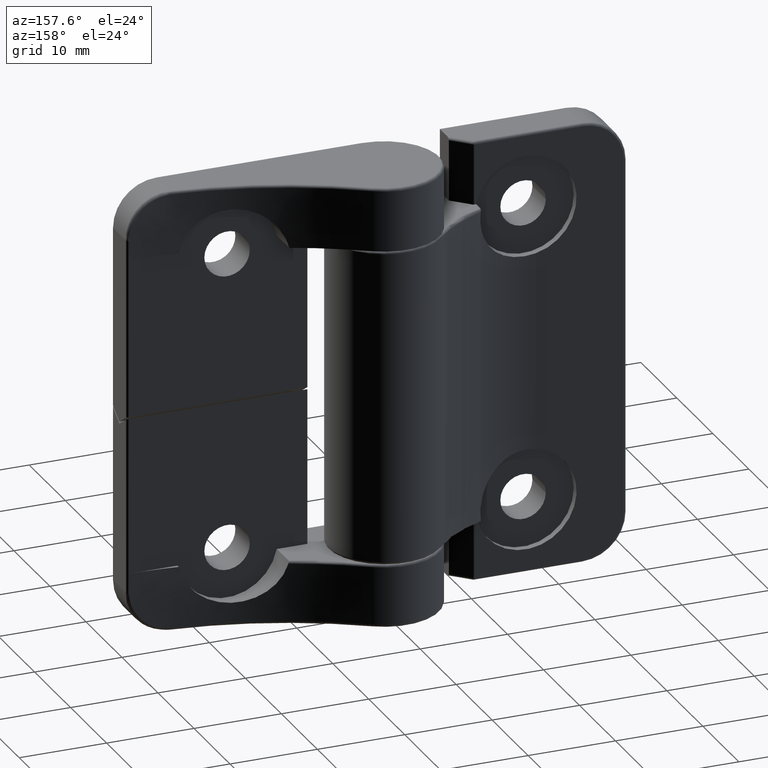
[diagram: clean part render]
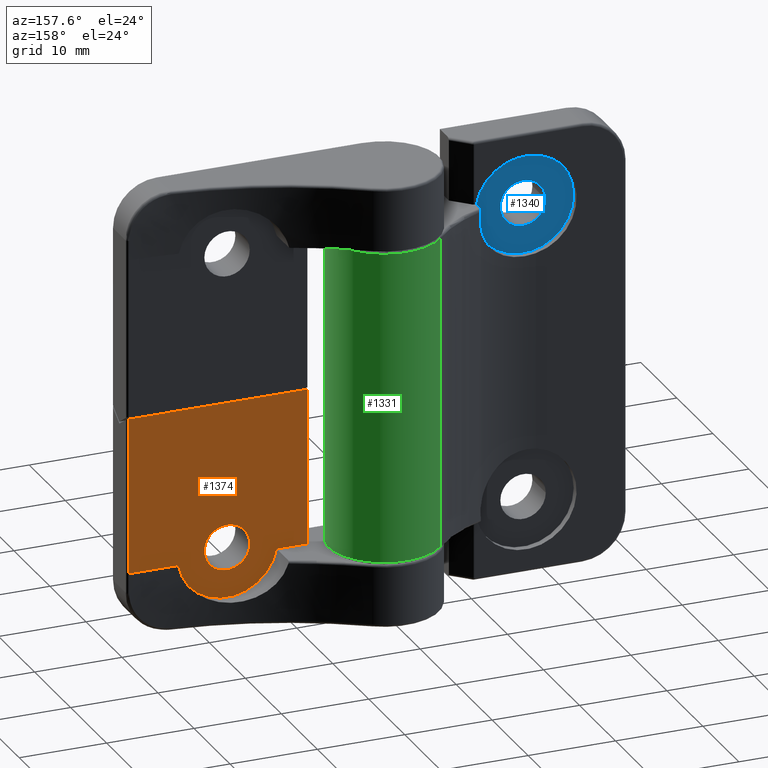
[diagram: same view with three faces highlighted in distinct colors, each labeled with its STEP entity id]
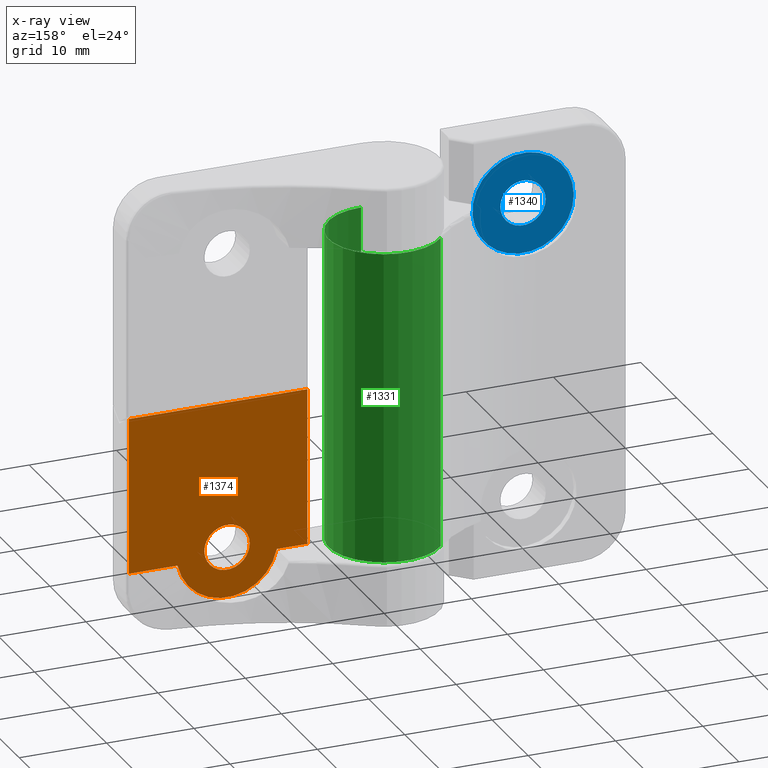
[diagram: x-ray of the same camera — body ghosted, the three highlighted faces saturated]
A machine part, auxiliary view with three faces highlighted in distinct colors.
The next image is the same camera in x-ray (body ghosted, the three faces saturated) — at least one of them is partly hidden behind the body in this view.
Their STEP definitions:

[orange] entity #1374 — the highlighted planar face has unit normal (-0, 1, 0).
#45=FACE_BOUND('',#495,.T.);
#81=PLANE('',#1538);
#178=LINE('',#2509,#273);
#179=LINE('',#2512,#274);
#180=LINE('',#2516,#275);
#181=LINE('',#2518,#276);
#182=LINE('',#2519,#277);
#273=VECTOR('',#1931,17.9114627911625);
#274=VECTOR('',#1934,5.5396314799251);
#275=VECTOR('',#1937,3.515151717064);
#276=VECTOR('',#1938,17.9114627911625);
#277=VECTOR('',#1939,20.4244797628611);
#400=FACE_OUTER_BOUND('',#494,.T.);
#494=EDGE_LOOP('',(#1222,#1223,#1224,#1225,#1226,#1227));
#495=EDGE_LOOP('',(#1228));
#586=CIRCLE('',#1539,5.8);
#587=CIRCLE('',#1540,2.6);
#699=VERTEX_POINT('',#2501);
#702=VERTEX_POINT('',#2507);
#703=VERTEX_POINT('',#2511);
#704=VERTEX_POINT('',#2513);
#705=VERTEX_POINT('',#2515);
#706=VERTEX_POINT('',#2517);
#707=VERTEX_POINT('',#2520);
#882=EDGE_CURVE('',#702,#699,#178,.T.);
#883=EDGE_CURVE('',#702,#703,#179,.T.);
#884=EDGE_CURVE('',#703,#704,#586,.T.);
#885=EDGE_CURVE('',#704,#705,#180,.T.);
#886=EDGE_CURVE('',#706,#705,#181,.T.);
#887=EDGE_CURVE('',#706,#699,#182,.T.);
#888=EDGE_CURVE('',#707,#707,#587,.T.);
#1222=ORIENTED_EDGE('',*,*,#882,.F.);
#1223=ORIENTED_EDGE('',*,*,#883,.T.);
#1224=ORIENTED_EDGE('',*,*,#884,.T.);
#1225=ORIENTED_EDGE('',*,*,#885,.T.);
#1226=ORIENTED_EDGE('',*,*,#886,.F.);
#1227=ORIENTED_EDGE('',*,*,#887,.T.);
#1228=ORIENTED_EDGE('',*,*,#888,.T.);
#1374=ADVANCED_FACE('',(#400,#45),#81,.T.);
#1538=AXIS2_PLACEMENT_3D('',#2510,#1932,#1933);
#1539=AXIS2_PLACEMENT_3D('',#2514,#1935,#1936);
#1540=AXIS2_PLACEMENT_3D('',#2521,#1940,#1941);
#1931=DIRECTION('',(0.,0.,-1.));
#1932=DIRECTION('center_axis',(-4.67462326157961E-16,1.,0.));
#1933=DIRECTION('ref_axis',(0.,0.,1.));
#1934=DIRECTION('',(1.,4.67462326157961E-16,0.));
#1935=DIRECTION('center_axis',(-4.67462326157961E-16,1.,0.));
#1936=DIRECTION('ref_axis',(1.,4.67462326157961E-16,0.));
#1937=DIRECTION('',(1.,4.67462326157961E-16,0.));
#1938=DIRECTION('',(0.,0.,1.));
#1939=DIRECTION('',(-1.,-4.67462326157961E-16,3.03850512002675E-16));
#1940=DIRECTION('center_axis',(4.67462326157961E-16,-1.,0.));
#1941=DIRECTION('ref_axis',(1.,4.67462326157961E-16,0.));
#2501=CARTESIAN_POINT('',(-28.2244797628611,-2.35000000000001,0.23853720883753));
#2507=CARTESIAN_POINT('',(-28.2244797628611,-2.35000000000001,18.15));
#2509=CARTESIAN_POINT('',(-28.2244797628611,-2.35000000000001,0.));
#2510=CARTESIAN_POINT('Origin',(-18.674404939889,-2.35000000000001,0.));
#2511=CARTESIAN_POINT('',(-22.684848282936,-2.35000000000001,18.15));
#2512=CARTESIAN_POINT('',(-43.698809879778,-2.35000000000002,18.15));
#2513=CARTESIAN_POINT('',(-11.315151717064,-2.35,18.15));
#2514=CARTESIAN_POINT('Origin',(-17.,-2.35000000000001,17.));
#2515=CARTESIAN_POINT('',(-7.8,-2.35,18.15));
#2516=CARTESIAN_POINT('',(-43.698809879778,-2.35000000000002,18.15));
#2517=CARTESIAN_POINT('',(-7.8,-2.35,0.238537208837524));
#2518=CARTESIAN_POINT('',(-7.8,-2.35,-9.075));
#2519=CARTESIAN_POINT('',(-23.5872024699445,-2.35000000000001,0.238537208837529));
#2520=CARTESIAN_POINT('',(-19.6,-2.35,17.));
#2521=CARTESIAN_POINT('Origin',(-17.,-2.35000000000001,17.));

[blue] entity #1340 — the highlighted planar face has unit normal (-0, 1, 0).
#39=FACE_BOUND('',#455,.T.);
#68=PLANE('',#1466);
#366=FACE_OUTER_BOUND('',#454,.T.);
#454=EDGE_LOOP('',(#1059));
#455=EDGE_LOOP('',(#1060));
#551=CIRCLE('',#1467,5.8);
#552=CIRCLE('',#1468,2.6);
#651=VERTEX_POINT('',#2239);
#652=VERTEX_POINT('',#2241);
#805=EDGE_CURVE('',#651,#651,#551,.T.);
#806=EDGE_CURVE('',#652,#652,#552,.T.);
#1059=ORIENTED_EDGE('',*,*,#805,.T.);
#1060=ORIENTED_EDGE('',*,*,#806,.F.);
#1340=ADVANCED_FACE('',(#366,#39),#68,.T.);
#1466=AXIS2_PLACEMENT_3D('',#2238,#1754,#1755);
#1467=AXIS2_PLACEMENT_3D('',#2240,#1756,#1757);
#1468=AXIS2_PLACEMENT_3D('',#2242,#1758,#1759);
#1754=DIRECTION('center_axis',(-3.48620756524808E-16,1.,0.));
#1755=DIRECTION('ref_axis',(1.,4.44089209850063E-16,0.));
#1756=DIRECTION('center_axis',(-3.48620756524808E-16,1.,0.));
#1757=DIRECTION('ref_axis',(1.,3.48620756524808E-16,0.));
#1758=DIRECTION('center_axis',(-3.48620756524808E-16,1.,0.));
#1759=DIRECTION('ref_axis',(1.,3.48620756524808E-16,0.));
#2238=CARTESIAN_POINT('Origin',(-17.,-2.65000000000001,17.));
#2239=CARTESIAN_POINT('',(-22.8,-2.65000000000001,17.));
#2240=CARTESIAN_POINT('Origin',(-17.,-2.65000000000001,17.));
#2241=CARTESIAN_POINT('',(-19.6,-2.65000000000001,17.));
#2242=CARTESIAN_POINT('Origin',(-17.,-2.65000000000001,17.));

[green] entity #1331 — the highlighted cylindrical surface (partial cylindrical patch) has radius 6.35 mm, axis along (0, 0, 1).
#136=LINE('',#2155,#231);
#138=LINE('',#2163,#233);
#231=VECTOR('',#1705,35.7);
#233=VECTOR('',#1713,35.7);
#310=CYLINDRICAL_SURFACE('',#1448,6.35);
#357=FACE_OUTER_BOUND('',#442,.T.);
#442=EDGE_LOOP('',(#1020,#1021,#1022,#1023));
#536=CIRCLE('',#1440,6.35);
#542=CIRCLE('',#1449,6.35);
#632=VERTEX_POINT('',#2122);
#634=VERTEX_POINT('',#2128);
#637=VERTEX_POINT('',#2154);
#640=VERTEX_POINT('',#2162);
#777=EDGE_CURVE('',#634,#632,#536,.T.);
#782=EDGE_CURVE('',#637,#632,#136,.T.);
#786=EDGE_CURVE('',#634,#640,#138,.T.);
#787=EDGE_CURVE('',#637,#640,#542,.T.);
#1020=ORIENTED_EDGE('',*,*,#777,.F.);
#1021=ORIENTED_EDGE('',*,*,#786,.T.);
#1022=ORIENTED_EDGE('',*,*,#787,.F.);
#1023=ORIENTED_EDGE('',*,*,#782,.T.);
#1331=ADVANCED_FACE('',(#357),#310,.T.);
#1440=AXIS2_PLACEMENT_3D('',#2130,#1693,#1694);
#1448=AXIS2_PLACEMENT_3D('',#2161,#1711,#1712);
#1449=AXIS2_PLACEMENT_3D('',#2164,#1714,#1715);
#1693=DIRECTION('center_axis',(0.,0.,-1.));
#1694=DIRECTION('ref_axis',(0.911309834438698,0.411721247515005,0.));
#1705=DIRECTION('',(0.,0.,-1.));
#1711=DIRECTION('center_axis',(0.,0.,1.));
#1712=DIRECTION('ref_axis',(-4.89858719658941E-16,1.,0.));
#1713=DIRECTION('',(0.,0.,1.));
#1714=DIRECTION('center_axis',(0.,0.,1.));
#1715=DIRECTION('ref_axis',(0.911309834438698,0.411721247515005,0.));
#2122=CARTESIAN_POINT('',(3.11060286983428E-15,-6.35,-17.85));
#2128=CARTESIAN_POINT('',(-4.76511139822898,4.19716730217754,-17.85));
#2130=CARTESIAN_POINT('Origin',(0.,0.,-17.85));
#2154=CARTESIAN_POINT('',(3.11060286983428E-15,-6.35,17.85));
#2155=CARTESIAN_POINT('',(3.11060286983428E-15,-6.35,0.));
#2161=CARTESIAN_POINT('Origin',(0.,0.,0.));
#2162=CARTESIAN_POINT('',(-4.76511139822898,4.19716730217754,17.85));
#2163=CARTESIAN_POINT('',(-4.76511139822898,4.19716730217754,0.));
#2164=CARTESIAN_POINT('Origin',(0.,0.,17.85));